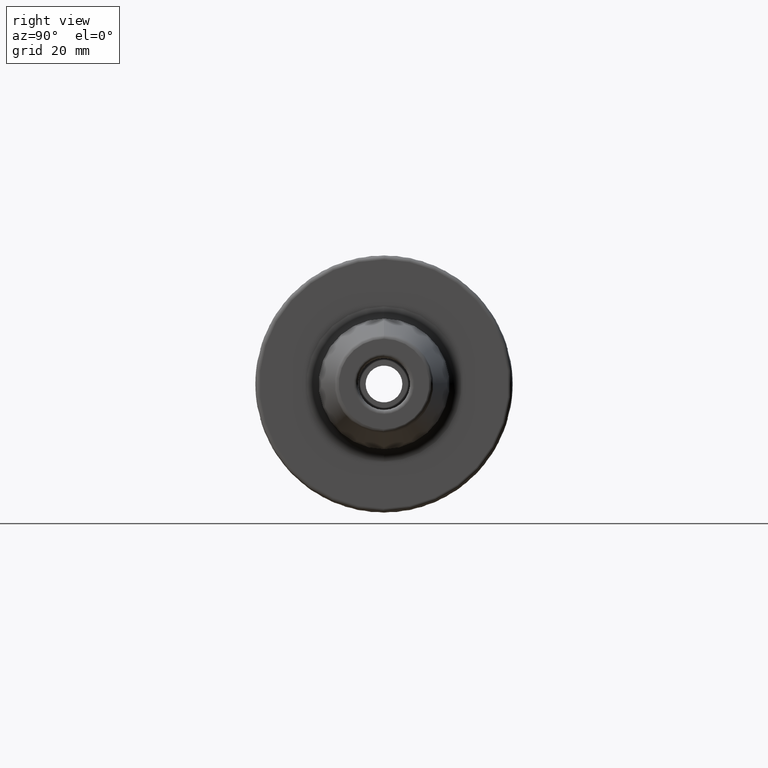
[diagram: clean part render]
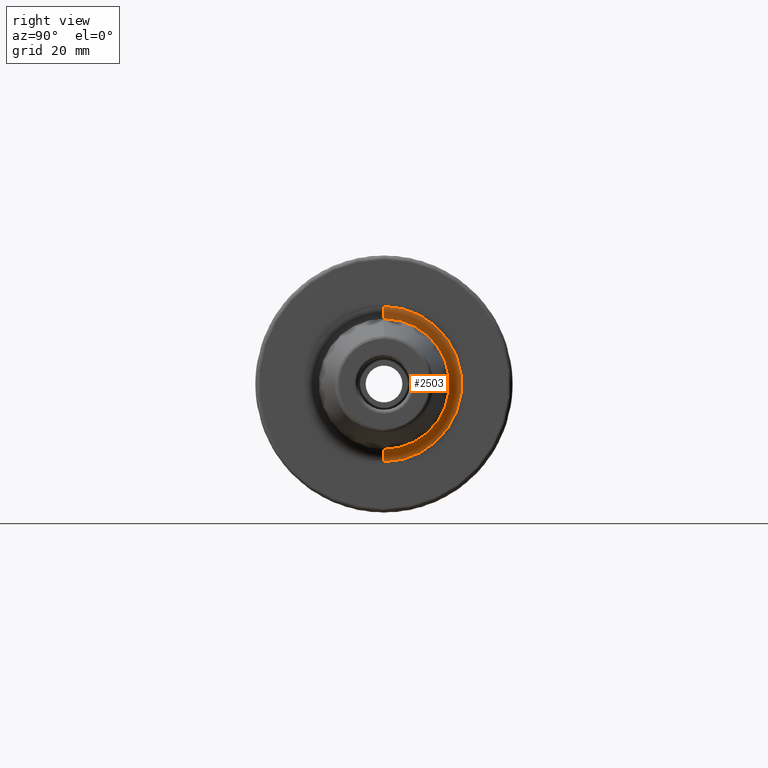
[diagram: same view with one face highlighted and labeled with its STEP entity id]
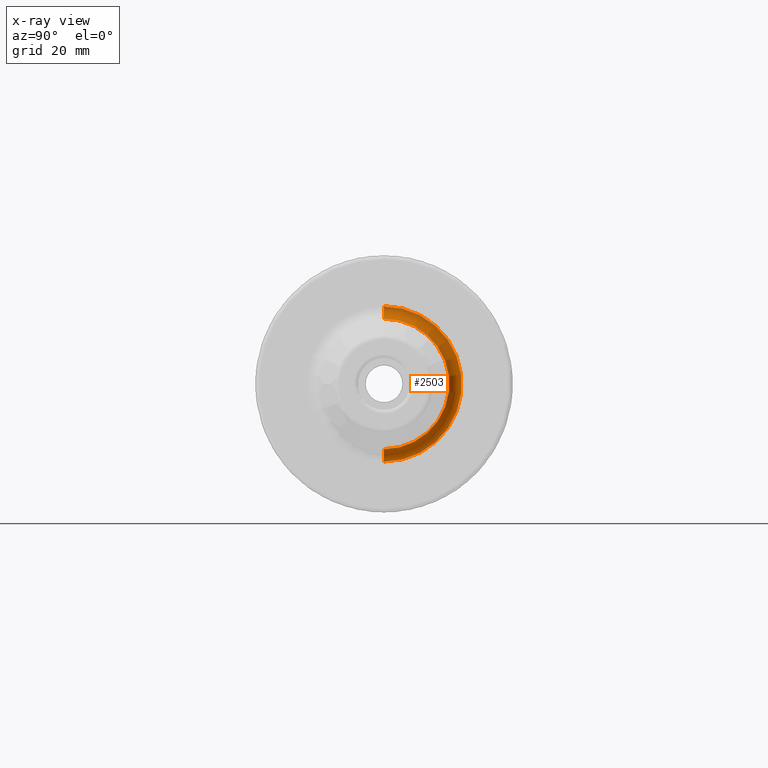
[diagram: x-ray of the same camera — body ghosted, the highlighted face saturated]
A machine part, right view. The second image highlights one B-rep face of the part: STEP entity #2503.
The next image is the same camera in x-ray: the body ghosted, the highlighted face saturated — about 0% of this face is hidden behind the body in this view.
In plain terms, the highlighted toroidal blend (fillet) surface has major radius 19 mm and minor (blend) radius 3 mm.
Its self-contained STEP definition (entity closure, byte-faithful):
#448=CARTESIAN_POINT('',(3.E1,0.E0,1.9E1));
#449=DIRECTION('',(0.E0,1.E0,0.E0));
#450=DIRECTION('',(0.E0,0.E0,-1.E0));
#451=AXIS2_PLACEMENT_3D('',#448,#449,#450);
#458=CARTESIAN_POINT('',(3.E1,0.E0,-1.9E1));
#459=DIRECTION('',(0.E0,-1.E0,0.E0));
#460=DIRECTION('',(0.E0,0.E0,1.E0));
#461=AXIS2_PLACEMENT_3D('',#458,#459,#460);
#473=CARTESIAN_POINT('',(2.7E1,0.E0,0.E0));
#474=DIRECTION('',(1.E0,0.E0,0.E0));
#475=DIRECTION('',(0.E0,0.E0,-1.E0));
#476=AXIS2_PLACEMENT_3D('',#473,#474,#475);
#983=CARTESIAN_POINT('',(3.E1,0.E0,0.E0));
#984=DIRECTION('',(1.E0,0.E0,0.E0));
#985=DIRECTION('',(0.E0,0.E0,-1.E0));
#986=AXIS2_PLACEMENT_3D('',#983,#984,#985);
#1177=CARTESIAN_POINT('',(3.E1,0.E0,-1.6E1));
#1178=VERTEX_POINT('',#1177);
#1199=CARTESIAN_POINT('',(3.E1,0.E0,1.6E1));
#1200=VERTEX_POINT('',#1199);
#1205=CARTESIAN_POINT('',(2.7E1,0.E0,-1.9E1));
#1206=CARTESIAN_POINT('',(2.7E1,0.E0,1.9E1));
#1207=VERTEX_POINT('',#1205);
#1208=VERTEX_POINT('',#1206);
#2492=CARTESIAN_POINT('',(3.E1,0.E0,0.E0));
#2493=DIRECTION('',(1.E0,0.E0,0.E0));
#2494=DIRECTION('',(0.E0,0.E0,1.E0));
#2495=AXIS2_PLACEMENT_3D('',#2492,#2493,#2494);
#2496=TOROIDAL_SURFACE('',#2495,1.9E1,3.E0);
#2497=ORIENTED_EDGE('',*,*,#1918,.F.);
#2498=ORIENTED_EDGE('',*,*,#1902,.F.);
#2499=ORIENTED_EDGE('',*,*,#1874,.T.);
#2500=ORIENTED_EDGE('',*,*,#1899,.T.);
#2501=EDGE_LOOP('',(#2497,#2498,#2499,#2500));
#2502=FACE_OUTER_BOUND('',#2501,.F.);
#2503=ADVANCED_FACE('',(#2502),#2496,.F.);
#452=CIRCLE('',#451,3.E0);
#462=CIRCLE('',#461,3.E0);
#477=CIRCLE('',#476,1.9E1);
#987=CIRCLE('',#986,1.6E1);
#1874=EDGE_CURVE('',#1178,#1200,#987,.T.);
#1899=EDGE_CURVE('',#1200,#1208,#452,.T.);
#1902=EDGE_CURVE('',#1178,#1207,#462,.T.);
#1918=EDGE_CURVE('',#1207,#1208,#477,.T.);